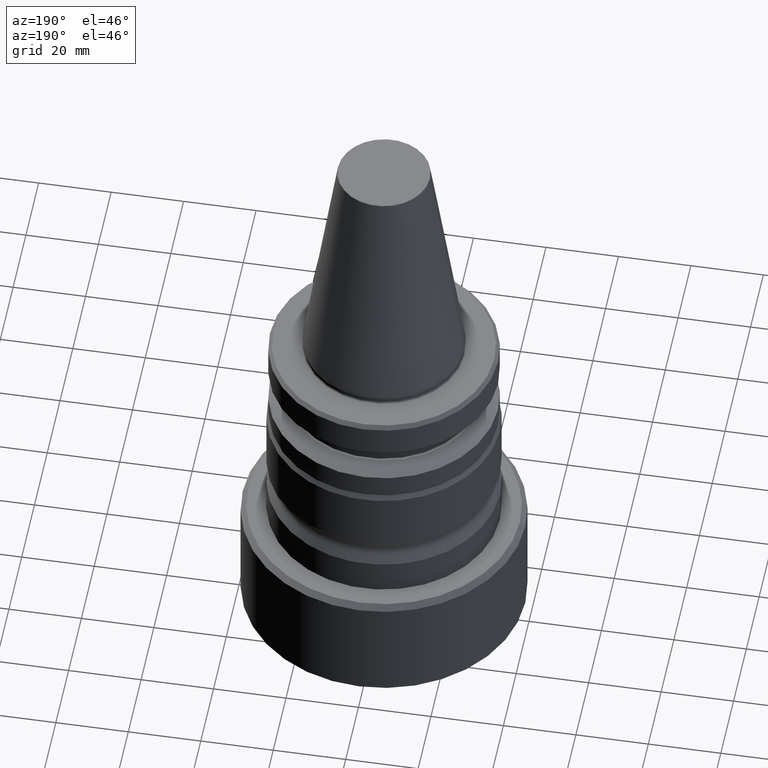
[diagram: clean part render]
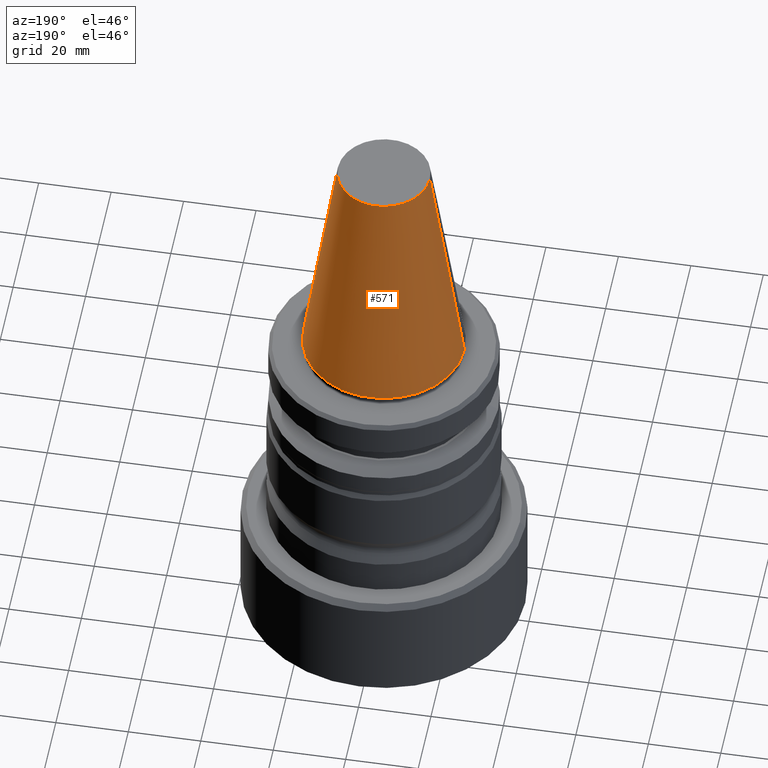
[diagram: same view with one face highlighted and labeled with its STEP entity id]
A machine part, auxiliary view. The second image highlights one B-rep face of the part: STEP entity #571.
In plain terms, the highlighted conical surface has half-angle 8.297 deg.
Its self-contained STEP definition (entity closure, byte-faithful):
#12 = CARTESIAN_POINT ( 'NONE',  ( 0.0000000000000000000, 0.0000000000000000000, 0.0000000000000000000 ) ) ;
#71 = CARTESIAN_POINT ( 'NONE',  ( 0.0000000000000000000, 0.0000000000000000000, 65.30860577012643400 ) ) ;
#152 = DIRECTION ( 'NONE',  ( 1.000000000000000000, 0.0000000000000000000, 0.0000000000000000000 ) ) ;
#180 = EDGE_LOOP ( 'NONE', ( #1063, #420, #1048, #935 ) ) ;
#253 = VERTEX_POINT ( 'NONE', #359 ) ;
#259 = VERTEX_POINT ( 'NONE', #1353 ) ;
#336 = AXIS2_PLACEMENT_3D ( 'NONE', #1343, #1364, #152 ) ;
#339 = EDGE_CURVE ( 'NONE', #1064, #253, #706, .T. ) ;
#359 = CARTESIAN_POINT ( 'NONE',  ( 22.22567292334554200, 0.0000000000000000000, 0.0000000000000000000 ) ) ;
#420 = ORIENTED_EDGE ( 'NONE', *, *, #339, .T. ) ;
#446 = CONICAL_SURFACE ( 'NONE', #787, 22.22567292334554200, 0.1448138077623246900 ) ;
#488 = DIRECTION ( 'NONE',  ( -0.1443081888881844200, 0.0000000000000000000, -0.9895327920891819900 ) ) ;
#571 = ADVANCED_FACE ( 'NONE', ( #698 ), #446, .T. ) ;
#635 = CARTESIAN_POINT ( 'NONE',  ( -22.22567292334554200, 0.0000000000000000000, 0.0000000000000000000 ) ) ;
#698 = FACE_OUTER_BOUND ( 'NONE', #180, .T. ) ;
#706 = LINE ( 'NONE', #1084, #1400 ) ;
#731 = CIRCLE ( 'NONE', #1196, 12.70141390652057500 ) ;
#736 = DIRECTION ( 'NONE',  ( 0.1443081888881844200, 1.767265616126666500E-017, -0.9895327920891819900 ) ) ;
#744 = EDGE_CURVE ( 'NONE', #1064, #259, #731, .T. ) ;
#787 = AXIS2_PLACEMENT_3D ( 'NONE', #12, #977, #1122 ) ;
#869 = VECTOR ( 'NONE', #488, 999.9999999999998900 ) ;
#871 = VERTEX_POINT ( 'NONE', #1268 ) ;
#874 = EDGE_CURVE ( 'NONE', #253, #871, #1249, .T. ) ;
#877 = CARTESIAN_POINT ( 'NONE',  ( 12.70141390652057500, 2.138667254486860800E-015, 65.30860577012643400 ) ) ;
#935 = ORIENTED_EDGE ( 'NONE', *, *, #1115, .F. ) ;
#977 = DIRECTION ( 'NONE',  ( 0.0000000000000000000, 0.0000000000000000000, -1.000000000000000000 ) ) ;
#992 = LINE ( 'NONE', #635, #869 ) ;
#1048 = ORIENTED_EDGE ( 'NONE', *, *, #874, .T. ) ;
#1049 = DIRECTION ( 'NONE',  ( 1.000000000000000000, 0.0000000000000000000, 0.0000000000000000000 ) ) ;
#1063 = ORIENTED_EDGE ( 'NONE', *, *, #744, .F. ) ;
#1064 = VERTEX_POINT ( 'NONE', #877 ) ;
#1084 = CARTESIAN_POINT ( 'NONE',  ( 22.22567292334554200, 2.721859920447111400E-015, 0.0000000000000000000 ) ) ;
#1115 = EDGE_CURVE ( 'NONE', #259, #871, #992, .T. ) ;
#1122 = DIRECTION ( 'NONE',  ( -1.000000000000000000, 0.0000000000000000000, 0.0000000000000000000 ) ) ;
#1196 = AXIS2_PLACEMENT_3D ( 'NONE', #71, #1283, #1049 ) ;
#1249 = CIRCLE ( 'NONE', #336, 22.22567292334554200 ) ;
#1268 = CARTESIAN_POINT ( 'NONE',  ( -22.22567292334554200, 2.721859920447111400E-015, 0.0000000000000000000 ) ) ;
#1283 = DIRECTION ( 'NONE',  ( -0.0000000000000000000, -0.0000000000000000000, 1.000000000000000000 ) ) ;
#1343 = CARTESIAN_POINT ( 'NONE',  ( 0.0000000000000000000, 0.0000000000000000000, 0.0000000000000000000 ) ) ;
#1353 = CARTESIAN_POINT ( 'NONE',  ( -12.70141390652057500, 0.0000000000000000000, 65.30860577012643400 ) ) ;
#1364 = DIRECTION ( 'NONE',  ( -0.0000000000000000000, -0.0000000000000000000, 1.000000000000000000 ) ) ;
#1400 = VECTOR ( 'NONE', #736, 999.9999999999998900 ) ;